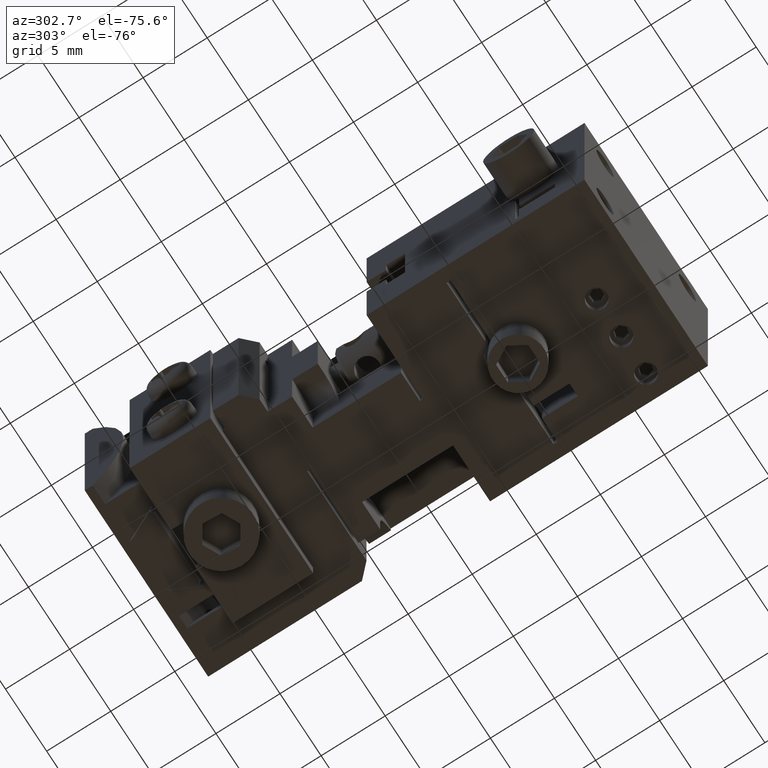
[diagram: clean part render]
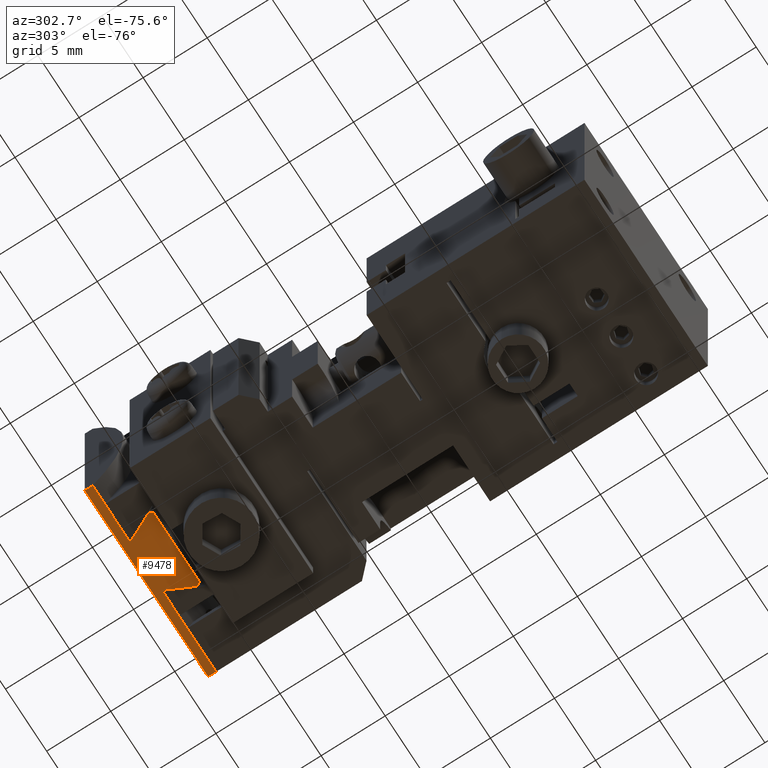
[diagram: same view with one face highlighted and labeled with its STEP entity id]
A machine part, auxiliary view. The second image highlights one B-rep face of the part: STEP entity #9478.
In plain terms, the highlighted planar face has unit normal (-0, -0, -1).
Its self-contained STEP definition (entity closure, byte-faithful):
#85 = VERTEX_POINT ( 'NONE', #24683 ) ;
#479 = ORIENTED_EDGE ( 'NONE', *, *, #3841, .T. ) ;
#1237 = DIRECTION ( 'NONE',  ( 0.000000000000000000, 0.000000000000000000, -1.000000000000000000 ) ) ;
#1289 = CARTESIAN_POINT ( 'NONE',  ( 7.500000000000000000, -0.9452994616207499590, -10.61838029079764034 ) ) ;
#1336 = CARTESIAN_POINT ( 'NONE',  ( 7.500000000000000000, 3.799999999999999822, -12.99038105676658006 ) ) ;
#1344 = EDGE_CURVE ( 'NONE', #7529, #8415, #3302, .T. ) ;
#1376 = VECTOR ( 'NONE', #22874, 1000.000000000000000 ) ;
#1855 = VECTOR ( 'NONE', #23445, 1000.000000000000000 ) ;
#2288 = PLANE ( 'NONE',  #24420 ) ;
#2375 =( BOUNDED_CURVE ( )  B_SPLINE_CURVE ( 2, ( #17911, #21834, #13562 ),
 .UNSPECIFIED., .F., .F. ) 
 B_SPLINE_CURVE_WITH_KNOTS ( ( 3, 3 ),
 ( 1.503010744680429944, 1.545338524347534825 ),
 .UNSPECIFIED. ) 
 CURVE ( )  GEOMETRIC_REPRESENTATION_ITEM ( )  RATIONAL_B_SPLINE_CURVE ( ( 1.184473058940124002, 1.184919455109092024, 1.185244688893164033 ) ) 
 REPRESENTATION_ITEM ( '' )  );
#2423 = DIRECTION ( 'NONE',  ( 0.000000000000000000, 1.000000000000000000, 0.000000000000000000 ) ) ;
#2746 = VECTOR ( 'NONE', #23186, 1000.000000000000000 ) ;
#3195 = EDGE_CURVE ( 'NONE', #22612, #19614, #19415, .T. ) ;
#3255 = ORIENTED_EDGE ( 'NONE', *, *, #4153, .T. ) ;
#3302 = LINE ( 'NONE', #20847, #2746 ) ;
#3356 =( BOUNDED_CURVE ( )  B_SPLINE_CURVE ( 2, ( #18644, #16403, #24405 ),
 .UNSPECIFIED., .F., .F. ) 
 B_SPLINE_CURVE_WITH_KNOTS ( ( 3, 3 ),
 ( 0.8667859763343199742, 0.8955250021109190106 ),
 .UNSPECIFIED. ) 
 CURVE ( )  GEOMETRIC_REPRESENTATION_ITEM ( )  RATIONAL_B_SPLINE_CURVE ( ( 1.715914333795129920, 1.725996135769400031, 1.735959467107869969 ) ) 
 REPRESENTATION_ITEM ( '' )  );
#3556 = VERTEX_POINT ( 'NONE', #23628 ) ;
#3758 = CARTESIAN_POINT ( 'NONE',  ( 7.500000000000000000, -7.500000000000000000, -10.00000000000000000 ) ) ;
#3841 = EDGE_CURVE ( 'NONE', #8900, #5823, #6207, .T. ) ;
#4049 = CARTESIAN_POINT ( 'NONE',  ( 7.500000000000000000, 2.945299461620749959, -10.61838029079764034 ) ) ;
#4050 = VECTOR ( 'NONE', #13766, 1000.000000000000000 ) ;
#4153 = EDGE_CURVE ( 'NONE', #5823, #3556, #14161, .T. ) ;
#4971 = EDGE_CURVE ( 'NONE', #17558, #8415, #2375, .T. ) ;
#5117 = CARTESIAN_POINT ( 'NONE',  ( 7.500000000000000000, -0.9452994616207499590, -10.61838029079764034 ) ) ;
#5504 = CARTESIAN_POINT ( 'NONE',  ( 7.500000000000000000, 7.500000000000000000, -10.00000000000000000 ) ) ;
#5823 = VERTEX_POINT ( 'NONE', #11549 ) ;
#6207 = LINE ( 'NONE', #14186, #16965 ) ;
#7204 = LINE ( 'NONE', #5504, #1855 ) ;
#7422 = ORIENTED_EDGE ( 'NONE', *, *, #14509, .T. ) ;
#7529 = VERTEX_POINT ( 'NONE', #10334 ) ;
#8102 = EDGE_CURVE ( 'NONE', #15595, #85, #15252, .T. ) ;
#8200 = CARTESIAN_POINT ( 'NONE',  ( 7.500000000000006217, 3.403011392803014346, -11.58897504049102523 ) ) ;
#8415 = VERTEX_POINT ( 'NONE', #1336 ) ;
#8815 = CARTESIAN_POINT ( 'NONE',  ( 7.500000000000000000, -1.949999999999999956, -12.68949452759802021 ) ) ;
#8900 = VERTEX_POINT ( 'NONE', #4049 ) ;
#9039 = EDGE_CURVE ( 'NONE', #85, #22612, #15125, .T. ) ;
#9478 = ADVANCED_FACE ( 'NONE', ( #12604 ), #2288, .T. ) ;
#9997 = EDGE_CURVE ( 'NONE', #3556, #15595, #7204, .T. ) ;
#10028 = CARTESIAN_POINT ( 'NONE',  ( 7.500000000000000000, 3.950000000000000178, -12.68949452759802021 ) ) ;
#10334 = CARTESIAN_POINT ( 'NONE',  ( 7.500000000000000000, -1.800000000000000044, -12.99038105676658006 ) ) ;
#11393 = ORIENTED_EDGE ( 'NONE', *, *, #4971, .F. ) ;
#11549 = CARTESIAN_POINT ( 'NONE',  ( 7.500000000000000000, 7.500000000000000000, -10.61838029079764034 ) ) ;
#11997 =( BOUNDED_CURVE ( )  B_SPLINE_CURVE ( 2, ( #10028, #8200, #19979 ),
 .UNSPECIFIED., .F., .F. ) 
 B_SPLINE_CURVE_WITH_KNOTS ( ( 3, 3 ),
 ( 0.03140709191230600661, 0.2638171605577639967 ),
 .UNSPECIFIED. ) 
 CURVE ( )  GEOMETRIC_REPRESENTATION_ITEM ( )  RATIONAL_B_SPLINE_CURVE ( ( 1.000756720383800147, 1.003178196560629898, 1.000000000000000000 ) ) 
 REPRESENTATION_ITEM ( '' )  );
#12030 = CARTESIAN_POINT ( 'NONE',  ( 7.500000000000000000, 3.950000000000000178, -12.68949452759802021 ) ) ;
#12035 = EDGE_LOOP ( 'NONE', ( #11393, #7422, #479, #3255, #20771, #21560, #15988, #22326, #12798, #22116 ) ) ;
#12604 = FACE_OUTER_BOUND ( 'NONE', #12035, .T. ) ;
#12798 = ORIENTED_EDGE ( 'NONE', *, *, #20843, .F. ) ;
#13562 = CARTESIAN_POINT ( 'NONE',  ( 7.500000000000000000, 3.800000000000000266, -12.99038105676658006 ) ) ;
#13766 = DIRECTION ( 'NONE',  ( 0.000000000000000000, 0.000000000000000000, 1.000000000000000000 ) ) ;
#14080 = VECTOR ( 'NONE', #1237, 1000.000000000000000 ) ;
#14161 = LINE ( 'NONE', #23863, #4050 ) ;
#14186 = CARTESIAN_POINT ( 'NONE',  ( 7.500000000000000000, 2.945299461620749959, -10.61838029079764034 ) ) ;
#14509 = EDGE_CURVE ( 'NONE', #17558, #8900, #11997, .T. ) ;
#15125 = LINE ( 'NONE', #18810, #1376 ) ;
#15252 = LINE ( 'NONE', #19450, #14080 ) ;
#15595 = VERTEX_POINT ( 'NONE', #3758 ) ;
#15892 = DIRECTION ( 'NONE',  ( 0.000000000000000000, 1.000000000000000000, 0.000000000000000000 ) ) ;
#15988 = ORIENTED_EDGE ( 'NONE', *, *, #9039, .T. ) ;
#16288 = CARTESIAN_POINT ( 'NONE',  ( 7.500000000000000000, 0.000000000000000000, 0.000000000000000000 ) ) ;
#16403 = CARTESIAN_POINT ( 'NONE',  ( 7.500000000000000000, -1.875878761644054427, -12.83862353347845975 ) ) ;
#16965 = VECTOR ( 'NONE', #15892, 1000.000000000000000 ) ;
#17008 = CARTESIAN_POINT ( 'NONE',  ( 7.500000000000000000, -1.949999999999999956, -12.68949452759802021 ) ) ;
#17558 = VERTEX_POINT ( 'NONE', #12030 ) ;
#17911 = CARTESIAN_POINT ( 'NONE',  ( 7.500000000000000000, 3.950000000000000178, -12.68949452759802021 ) ) ;
#18644 = CARTESIAN_POINT ( 'NONE',  ( 7.500000000000000000, -1.800000000000000044, -12.99038105676658006 ) ) ;
#18810 = CARTESIAN_POINT ( 'NONE',  ( 7.500000000000000000, -7.500000000000000000, -10.61838029079764034 ) ) ;
#19415 =( BOUNDED_CURVE ( )  B_SPLINE_CURVE ( 2, ( #1289, #21828, #17008 ),
 .UNSPECIFIED., .F., .F. ) 
 B_SPLINE_CURVE_WITH_KNOTS ( ( 3, 3 ),
 ( 0.000000000000000000, 0.2324100686454700082 ),
 .UNSPECIFIED. ) 
 CURVE ( )  GEOMETRIC_REPRESENTATION_ITEM ( )  RATIONAL_B_SPLINE_CURVE ( ( 1.000000000000000000, 1.003178196560859936, 1.000756720383854104 ) ) 
 REPRESENTATION_ITEM ( '' )  );
#19450 = CARTESIAN_POINT ( 'NONE',  ( 7.500000000000000000, -7.500000000000000000, -10.00000000000000000 ) ) ;
#19614 = VERTEX_POINT ( 'NONE', #8815 ) ;
#19979 = CARTESIAN_POINT ( 'NONE',  ( 7.500000000000000000, 2.945299461620749959, -10.61838029079764034 ) ) ;
#20771 = ORIENTED_EDGE ( 'NONE', *, *, #9997, .T. ) ;
#20843 = EDGE_CURVE ( 'NONE', #7529, #19614, #3356, .T. ) ;
#20847 = CARTESIAN_POINT ( 'NONE',  ( 7.500000000000000000, -1.800000000000000044, -12.99038105676658006 ) ) ;
#21560 = ORIENTED_EDGE ( 'NONE', *, *, #8102, .T. ) ;
#21828 = CARTESIAN_POINT ( 'NONE',  ( 7.500000000000009770, -1.403011392802908652, -11.58897504049082094 ) ) ;
#21834 = CARTESIAN_POINT ( 'NONE',  ( 7.500000000000000000, 3.875878761637880920, -12.83862353349098306 ) ) ;
#22116 = ORIENTED_EDGE ( 'NONE', *, *, #1344, .T. ) ;
#22326 = ORIENTED_EDGE ( 'NONE', *, *, #3195, .T. ) ;
#22612 = VERTEX_POINT ( 'NONE', #5117 ) ;
#22874 = DIRECTION ( 'NONE',  ( 0.000000000000000000, 1.000000000000000000, 0.000000000000000000 ) ) ;
#23186 = DIRECTION ( 'NONE',  ( 0.000000000000000000, 1.000000000000000000, 0.000000000000000000 ) ) ;
#23445 = DIRECTION ( 'NONE',  ( 0.000000000000000000, -1.000000000000000000, 0.000000000000000000 ) ) ;
#23628 = CARTESIAN_POINT ( 'NONE',  ( 7.500000000000000000, 7.500000000000000000, -10.00000000000000000 ) ) ;
#23863 = CARTESIAN_POINT ( 'NONE',  ( 7.500000000000000000, 7.500000000000000000, -10.61838029079764034 ) ) ;
#24285 = DIRECTION ( 'NONE',  ( 1.000000000000000000, 0.000000000000000000, 0.000000000000000000 ) ) ;
#24405 = CARTESIAN_POINT ( 'NONE',  ( 7.500000000000000888, -1.949999999999999956, -12.68949452759802021 ) ) ;
#24420 = AXIS2_PLACEMENT_3D ( 'NONE', #16288, #24285, #2423 ) ;
#24683 = CARTESIAN_POINT ( 'NONE',  ( 7.500000000000000000, -7.500000000000000000, -10.61838029079764034 ) ) ;